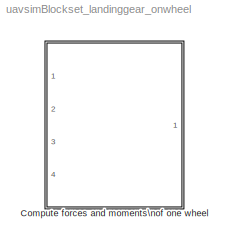
MODEL uavsimBlockset_landinggear_onwheel
KIND library
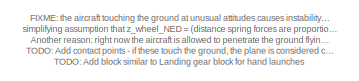
[diagram: Compute forces and moments\nof one wheel - part 1/3, top left region]
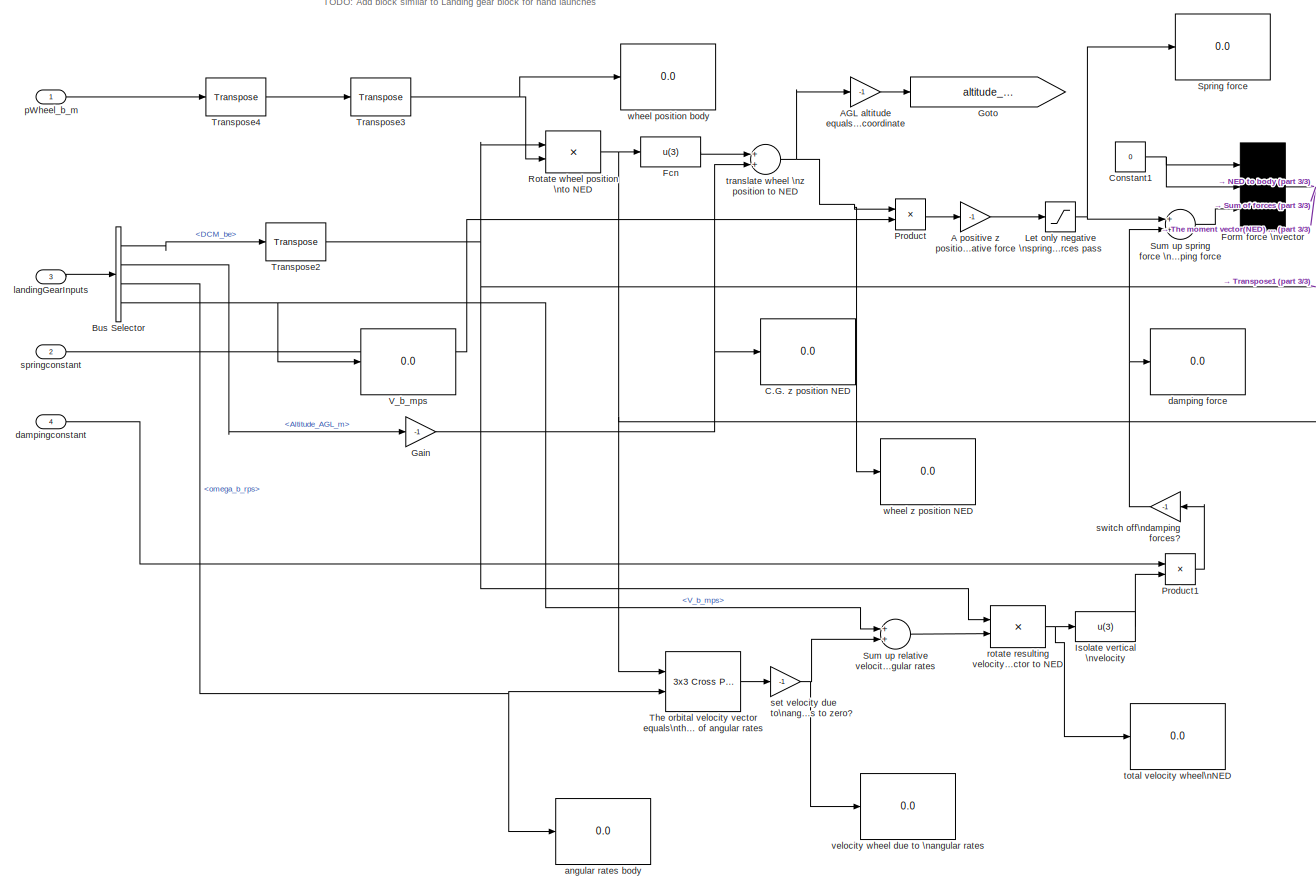
[diagram: Compute forces and moments\nof one wheel - part 2/3, left side, full height]
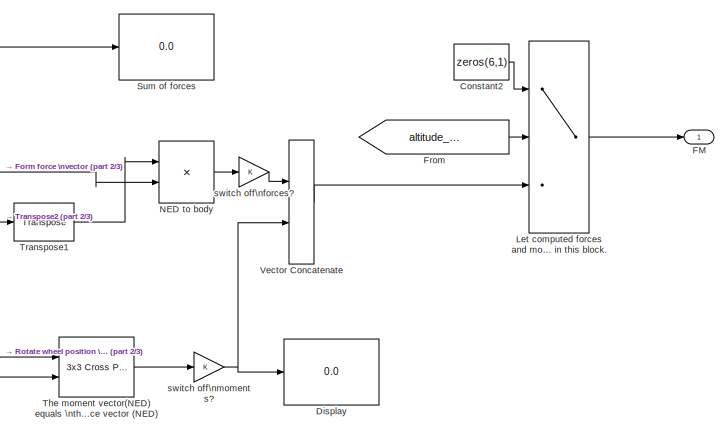
[diagram: Compute forces and moments\nof one wheel - part 3/3, middle right region]
BLOCK [SubSystem] Compute forces and moments\nof one wheel
  FunctionWithSeparateData = off
  MaskHideContents = off
  MinAlgLoopOccurrences = off
  Opaque = off
  Ports = [4, 1]
  PropExecContextOutsideSubsystem = off
  RTWSystemCode = Auto
  RequestExecContextInheritance = off
  SID = 3264
BLOCK [Gain] Compute forces and moments\nof one wheel/A positive z position\nshould generate \na negative force
  Gain = -1
  OutDataTypeStr = Inherit: Inherit via internal rule
  ParamDataTypeStr = Inherit: Inherit via internal rule
  SID = 3269
  SaturateOnIntegerOverflow = off
BLOCK [Gain] Compute forces and moments\nof one wheel/AGL altitude equals\nthe negative NED \nz coordinate
  Gain = -1
  OutDataTypeStr = Inherit: Inherit via internal rule
  ParamDataTypeStr = Inherit: Inherit via internal rule
  SID = 3270
  SaturateOnIntegerOverflow = off
BLOCK [BusSelector] Compute forces and moments\nof one wheel/Bus Selector
  OutputSignals = DCM_be,Altitude_AGL_m,omega_b_rps,V_b_mps
  Ports = [1, 4]
  SID = 3271
BLOCK [Display] Compute forces and moments\nof one wheel/C.G. z position NED
  Decimation = 1
  Lockdown = off
  Ports = [1]
  SID = 3272
BLOCK [Constant] Compute forces and moments\nof one wheel/Constant1
  SID = 3273
  Value = 0
BLOCK [Constant] Compute forces and moments\nof one wheel/Constant2
  SID = 3274
  Value = zeros(6,1)
BLOCK [Display] Compute forces and moments\nof one wheel/Display
  Decimation = 1
  Lockdown = off
  Ports = [1]
  SID = 3275
BLOCK [Outport] Compute forces and moments\nof one wheel/FM
  IconDisplay = Port number
  SID = 3312
BLOCK [Fcn] Compute forces and moments\nof one wheel/Fcn
  Expr = u(3)
  SID = 3276
BLOCK [Mux] Compute forces and moments\nof one wheel/Form force \nvector
  DisplayOption = bar
  Inputs = 3
  Ports = [3, 1]
  SID = 3277
BLOCK [From] Compute forces and moments\nof one wheel/From
  GotoTag = altitude_wheel_AGL_m
  SID = 3278
BLOCK [Gain] Compute forces and moments\nof one wheel/Gain
  Gain = -1
  OutDataTypeStr = Inherit: Inherit via internal rule
  ParamDataTypeStr = Inherit: Inherit via internal rule
  SID = 3279
  SaturateOnIntegerOverflow = off
BLOCK [Goto] Compute forces and moments\nof one wheel/Goto
  GotoTag = altitude_wheel_AGL_m
  SID = 3280
BLOCK [Fcn] Compute forces and moments\nof one wheel/Isolate vertical \nvelocity
  Expr = u(3)
  SID = 3281
BLOCK [Switch] Compute forces and moments\nof one wheel/Let computed forces and moments\nonly pass if the wheel touches the\nground. Thi s saves checking this condition\nmultiple times in this block.
  InputSameDT = off
  SID = 3282
  SaturateOnIntegerOverflow = off
BLOCK [Saturate] Compute forces and moments\nof one wheel/Let only negative \nspring forces pass
  InputPortMap = u0
  LowerLimit = -inf
  Ports = [1, 1]
  SID = 3283
  UpperLimit = 0
BLOCK [Product] Compute forces and moments\nof one wheel/NED to body
  InputSameDT = off
  Multiplication = Matrix(*)
  OutDataTypeStr = Inherit: Inherit via internal rule
  Ports = [2, 1]
  RndMeth = Floor
  SID = 3284
  SaturateOnIntegerOverflow = off
BLOCK [Product] Compute forces and moments\nof one wheel/Product
  InputSameDT = off
  OutDataTypeStr = Inherit: Inherit via internal rule
  Ports = [2, 1]
  SID = 3285
  SaturateOnIntegerOverflow = off
BLOCK [Product] Compute forces and moments\nof one wheel/Product1
  InputSameDT = off
  OutDataTypeStr = Inherit: Inherit via internal rule
  Ports = [2, 1]
  SID = 3286
  SaturateOnIntegerOverflow = off
BLOCK [Product] Compute forces and moments\nof one wheel/Rotate wheel position \nto NED
  InputSameDT = off
  Multiplication = Matrix(*)
  OutDataTypeStr = Inherit: Inherit via internal rule
  Ports = [2, 1]
  RndMeth = Floor
  SID = 3287
  SaturateOnIntegerOverflow = off
BLOCK [Display] Compute forces and moments\nof one wheel/Spring force
  Decimation = 1
  Lockdown = off
  Ports = [1]
  SID = 3288
BLOCK [Display] Compute forces and moments\nof one wheel/Sum of forces
  Decimation = 1
  Lockdown = off
  Ports = [1]
  SID = 3289
BLOCK [Sum] Compute forces and moments\nof one wheel/Sum up relative velocity\nof body frame and ground\nand velocity in the body frame \ndue to angular rates
  InputSameDT = off
  OutDataTypeStr = Inherit: Inherit via internal rule
  Ports = [2, 1]
  SID = 3290
  SaturateOnIntegerOverflow = off
BLOCK [Sum] Compute forces and moments\nof one wheel/Sum up spring force \nand damping force
  InputSameDT = off
  OutDataTypeStr = Inherit: Inherit via internal rule
  Ports = [2, 1]
  SID = 3291
  SaturateOnIntegerOverflow = off
BLOCK [Reference] Compute forces and moments\nof one wheel/The moment vector(NED) equals \nthe cross product of the lever arm (NED)\nand the force vector (NED)  REF=aerolibutil/3x3 Cross Product
  Ports = [2, 1]
  SID = 3292
  SourceBlock = aerolibutil/3x3 Cross Product
  SourceType = CrossProduct
BLOCK [Reference] Compute forces and moments\nof one wheel/The orbital velocity vector equals\nthe cross product of the radius vector\n(= position of the wheel in the body\nframe) and the vector of angular rates  REF=aerolibutil/3x3 Cross Product
  Ports = [2, 1]
  SID = 3293
  SourceBlock = aerolibutil/3x3 Cross Product
  SourceType = CrossProduct
BLOCK [Reference] Compute forces and moments\nof one wheel/Transpose1  REF=uavsimblockset/Transpose  (lib defined in mdl_5d9185be9e12)
  FunctionWithSeparateData = off
  GeneratePreprocessorConditionals = off
  Ports = [1, 1]
  SID = 3970
  ShowPortLabels = FromPortIcon
  SourceBlock = uavsimblockset/Transpose
  SourceType = Unknown
  SystemSampleTime = -1
BLOCK [Reference] Compute forces and moments\nof one wheel/Transpose2  REF=uavsimblockset/Transpose  (lib defined in mdl_5d9185be9e12)
  FunctionWithSeparateData = off
  GeneratePreprocessorConditionals = off
  Ports = [1, 1]
  SID = 3971
  ShowPortLabels = FromPortIcon
  SourceBlock = uavsimblockset/Transpose
  SourceType = Unknown
  SystemSampleTime = -1
BLOCK [Reference] Compute forces and moments\nof one wheel/Transpose3  REF=uavsimblockset/Transpose  (lib defined in mdl_5d9185be9e12)
  FunctionWithSeparateData = off
  GeneratePreprocessorConditionals = off
  Ports = [1, 1]
  SID = 3999
  ShowPortLabels = FromPortIcon
  SourceBlock = uavsimblockset/Transpose
  SourceType = Unknown
  SystemSampleTime = -1
BLOCK [Reference] Compute forces and moments\nof one wheel/Transpose4  REF=uavsimblockset/Transpose  (lib defined in mdl_5d9185be9e12)
  FunctionWithSeparateData = off
  GeneratePreprocessorConditionals = off
  Ports = [1, 1]
  SID = 3968
  ShowPortLabels = FromPortIcon
  SourceBlock = uavsimblockset/Transpose
  SourceType = Unknown
  SystemSampleTime = -1
BLOCK [Display] Compute forces and moments\nof one wheel/V_b_mps
  Decimation = 1
  Lockdown = off
  Ports = [1]
  SID = 3298
BLOCK [Concatenate] Compute forces and moments\nof one wheel/Vector Concatenate
  Ports = [2, 1]
  SID = 3299
BLOCK [Display] Compute forces and moments\nof one wheel/angular rates body
  Decimation = 1
  Lockdown = off
  Ports = [1]
  SID = 3300
BLOCK [Display] Compute forces and moments\nof one wheel/damping force
  Decimation = 1
  Lockdown = off
  Ports = [1]
  SID = 3301
BLOCK [Inport] Compute forces and moments\nof one wheel/dampingconstant
  IconDisplay = Port number
  Port = 4
  SID = 3268
BLOCK [Inport] Compute forces and moments\nof one wheel/landingGearInputs
  IconDisplay = Port number
  OutDataTypeStr = Bus: LandinggearInput
  Port = 3
  SID = 3267
BLOCK [Inport] Compute forces and moments\nof one wheel/pWheel_b_m
  IconDisplay = Port number
  SID = 3265
BLOCK [Product] Compute forces and moments\nof one wheel/rotate resulting velocity\nvector to NED
  InputSameDT = off
  Multiplication = Matrix(*)
  OutDataTypeStr = Inherit: Inherit via internal rule
  Ports = [2, 1]
  RndMeth = Floor
  SID = 3302
  SaturateOnIntegerOverflow = off
BLOCK [Gain] Compute forces and moments\nof one wheel/set velocity due to\nangular rates to zero?
  Gain = -1
  OutDataTypeStr = Inherit: Inherit via internal rule
  ParamDataTypeStr = Inherit: Inherit via internal rule
  SID = 3303
  SaturateOnIntegerOverflow = off
BLOCK [Inport] Compute forces and moments\nof one wheel/springconstant
  IconDisplay = Port number
  Port = 2
  SID = 3266
BLOCK [Gain] Compute forces and moments\nof one wheel/switch off\ndamping forces?
  Gain = -1
  OutDataTypeStr = Inherit: Inherit via internal rule
  ParamDataTypeStr = Inherit: Inherit via internal rule
  SID = 3304
  SaturateOnIntegerOverflow = off
BLOCK [Gain] Compute forces and moments\nof one wheel/switch off\nforces?
  OutDataTypeStr = Inherit: Inherit via internal rule
  ParamDataTypeStr = Inherit: Inherit via internal rule
  SID = 3305
  SaturateOnIntegerOverflow = off
BLOCK [Gain] Compute forces and moments\nof one wheel/switch off\nmoments?
  OutDataTypeStr = Inherit: Inherit via internal rule
  ParamDataTypeStr = Inherit: Inherit via internal rule
  SID = 3306
  SaturateOnIntegerOverflow = off
BLOCK [Display] Compute forces and moments\nof one wheel/total velocity wheel\nNED
  Decimation = 1
  Lockdown = off
  Ports = [1]
  SID = 3307
BLOCK [Sum] Compute forces and moments\nof one wheel/translate wheel \nz position to NED
  InputSameDT = off
  OutDataTypeStr = Inherit: Inherit via internal rule
  Ports = [2, 1]
  SID = 3308
  SaturateOnIntegerOverflow = off
BLOCK [Display] Compute forces and moments\nof one wheel/velocity wheel due to \nangular rates
  Decimation = 1
  Lockdown = off
  Ports = [1]
  SID = 3309
BLOCK [Display] Compute forces and moments\nof one wheel/wheel position body
  Decimation = 1
  Lockdown = off
  Ports = [1]
  SID = 3310
BLOCK [Display] Compute forces and moments\nof one wheel/wheel z position NED 
  Decimation = 1
  Lockdown = off
  Ports = [1]
  SID = 3311
ANNOTATION Compute forces and moments\nof one wheel: FIXME: the aircraft touching the ground at unusual attitudes causes instability. This is probably due the\nsimplifying assumption that z_wheel_NED = (distance spring forces are proportional to). \nAnother reason: right now the aircraft is allowed to penetrate the ground flying upside down.\nTODO: Add contact points - if these touch the ground, the plane is considered crashed.\nTODO: Add block simi...<+45ch>
LINE Compute forces and moments\nof one wheel/A positive z position\nshould generate \na negative force:1 -> Compute forces and moments\nof one wheel/Let only negative \nspring forces pass:1
LINE Compute forces and moments\nof one wheel/AGL altitude equals\nthe negative NED \nz coordinate:1 -> Compute forces and moments\nof one wheel/Goto:1
LINE Compute forces and moments\nof one wheel/Bus Selector:1 -> Compute forces and moments\nof one wheel/Transpose2:1
LINE Compute forces and moments\nof one wheel/Bus Selector:2 -> Compute forces and moments\nof one wheel/Gain:1
NET Compute forces and moments\nof one wheel/Bus Selector:3 -> Compute forces and moments\nof one wheel/The orbital velocity vector equals\nthe cross product of the radius vector\n(= position of the wheel in the body\nframe) and the vector of angular rates:2, Compute forces and moments\nof one wheel/angular rates body:1
NET Compute forces and moments\nof one wheel/Bus Selector:4 -> Compute forces and moments\nof one wheel/Sum up relative velocity\nof body frame and ground\nand velocity in the body frame \ndue to angular rates:1, Compute forces and moments\nof one wheel/V_b_mps:1
NET Compute forces and moments\nof one wheel/Constant1:1 -> Compute forces and moments\nof one wheel/Form force \nvector:1, Compute forces and moments\nof one wheel/Form force \nvector:2
LINE Compute forces and moments\nof one wheel/Constant2:1 -> Compute forces and moments\nof one wheel/Let computed forces and moments\nonly pass if the wheel touches the\nground. Thi s saves checking this condition\nmultiple times in this block.:1
LINE Compute forces and moments\nof one wheel/Fcn:1 -> Compute forces and moments\nof one wheel/translate wheel \nz position to NED:1
NET Compute forces and moments\nof one wheel/Form force \nvector:1 -> Compute forces and moments\nof one wheel/NED to body:2, Compute forces and moments\nof one wheel/Sum of forces:1, Compute forces and moments\nof one wheel/The moment vector(NED) equals \nthe cross product of the lever arm (NED)\nand the force vector (NED):2
LINE Compute forces and moments\nof one wheel/From:1 -> Compute forces and moments\nof one wheel/Let computed forces and moments\nonly pass if the wheel touches the\nground. Thi s saves checking this condition\nmultiple times in this block.:2
NET Compute forces and moments\nof one wheel/Gain:1 -> Compute forces and moments\nof one wheel/C.G. z position NED:1, Compute forces and moments\nof one wheel/translate wheel \nz position to NED:2
LINE Compute forces and moments\nof one wheel/Isolate vertical \nvelocity:1 -> Compute forces and moments\nof one wheel/Product1:2
LINE Compute forces and moments\nof one wheel/Let computed forces and moments\nonly pass if the wheel touches the\nground. Thi s saves checking this condition\nmultiple times in this block.:1 -> Compute forces and moments\nof one wheel/FM:1
NET Compute forces and moments\nof one wheel/Let only negative \nspring forces pass:1 -> Compute forces and moments\nof one wheel/Spring force:1, Compute forces and moments\nof one wheel/Sum up spring force \nand damping force:1
LINE Compute forces and moments\nof one wheel/NED to body:1 -> Compute forces and moments\nof one wheel/switch off\nforces?:1
LINE Compute forces and moments\nof one wheel/Product1:1 -> Compute forces and moments\nof one wheel/switch off\ndamping forces?:1
LINE Compute forces and moments\nof one wheel/Product:1 -> Compute forces and moments\nof one wheel/A positive z position\nshould generate \na negative force:1
NET Compute forces and moments\nof one wheel/Rotate wheel position \nto NED:1 -> Compute forces and moments\nof one wheel/Fcn:1, Compute forces and moments\nof one wheel/The moment vector(NED) equals \nthe cross product of the lever arm (NED)\nand the force vector (NED):1, Compute forces and moments\nof one wheel/The orbital velocity vector equals\nthe cross product of the radius vector\n(= position of the wheel in the body\nframe) and the vector of angular rates:1
LINE Compute forces and moments\nof one wheel/Sum up relative velocity\nof body frame and ground\nand velocity in the body frame \ndue to angular rates:1 -> Compute forces and moments\nof one wheel/rotate resulting velocity\nvector to NED:2
LINE Compute forces and moments\nof one wheel/Sum up spring force \nand damping force:1 -> Compute forces and moments\nof one wheel/Form force \nvector:3
LINE Compute forces and moments\nof one wheel/The moment vector(NED) equals \nthe cross product of the lever arm (NED)\nand the force vector (NED):1 -> Compute forces and moments\nof one wheel/switch off\nmoments?:1
LINE Compute forces and moments\nof one wheel/The orbital velocity vector equals\nthe cross product of the radius vector\n(= position of the wheel in the body\nframe) and the vector of angular rates:1 -> Compute forces and moments\nof one wheel/set velocity due to\nangular rates to zero?:1
LINE Compute forces and moments\nof one wheel/Transpose1:1 -> Compute forces and moments\nof one wheel/NED to body:1
NET Compute forces and moments\nof one wheel/Transpose2:1 -> Compute forces and moments\nof one wheel/Rotate wheel position \nto NED:1, Compute forces and moments\nof one wheel/Transpose1:1, Compute forces and moments\nof one wheel/rotate resulting velocity\nvector to NED:1
NET Compute forces and moments\nof one wheel/Transpose3:1 -> Compute forces and moments\nof one wheel/Rotate wheel position \nto NED:2, Compute forces and moments\nof one wheel/wheel position body:1
LINE Compute forces and moments\nof one wheel/Transpose4:1 -> Compute forces and moments\nof one wheel/Transpose3:1
LINE Compute forces and moments\nof one wheel/Vector Concatenate:1 -> Compute forces and moments\nof one wheel/Let computed forces and moments\nonly pass if the wheel touches the\nground. Thi s saves checking this condition\nmultiple times in this block.:3
LINE Compute forces and moments\nof one wheel/dampingconstant:1 -> Compute forces and moments\nof one wheel/Product1:1
LINE Compute forces and moments\nof one wheel/landingGearInputs:1 -> Compute forces and moments\nof one wheel/Bus Selector:1
LINE Compute forces and moments\nof one wheel/pWheel_b_m:1 -> Compute forces and moments\nof one wheel/Transpose4:1
NET Compute forces and moments\nof one wheel/rotate resulting velocity\nvector to NED:1 -> Compute forces and moments\nof one wheel/Isolate vertical \nvelocity:1, Compute forces and moments\nof one wheel/total velocity wheel\nNED:1
NET Compute forces and moments\nof one wheel/set velocity due to\nangular rates to zero?:1 -> Compute forces and moments\nof one wheel/Sum up relative velocity\nof body frame and ground\nand velocity in the body frame \ndue to angular rates:2, Compute forces and moments\nof one wheel/velocity wheel due to \nangular rates:1
LINE Compute forces and moments\nof one wheel/springconstant:1 -> Compute forces and moments\nof one wheel/Product:2
NET Compute forces and moments\nof one wheel/switch off\ndamping forces?:1 -> Compute forces and moments\nof one wheel/Sum up spring force \nand damping force:2, Compute forces and moments\nof one wheel/damping force:1
LINE Compute forces and moments\nof one wheel/switch off\nforces?:1 -> Compute forces and moments\nof one wheel/Vector Concatenate:1
NET Compute forces and moments\nof one wheel/switch off\nmoments?:1 -> Compute forces and moments\nof one wheel/Display:1, Compute forces and moments\nof one wheel/Vector Concatenate:2
NET Compute forces and moments\nof one wheel/translate wheel \nz position to NED:1 -> Compute forces and moments\nof one wheel/AGL altitude equals\nthe negative NED \nz coordinate:1, Compute forces and moments\nof one wheel/Product:1, Compute forces and moments\nof one wheel/wheel z position NED :1
note: NET lines group one-source signal fan-out (src -> all destinations, sorted); 1:1 wires keep LINE
